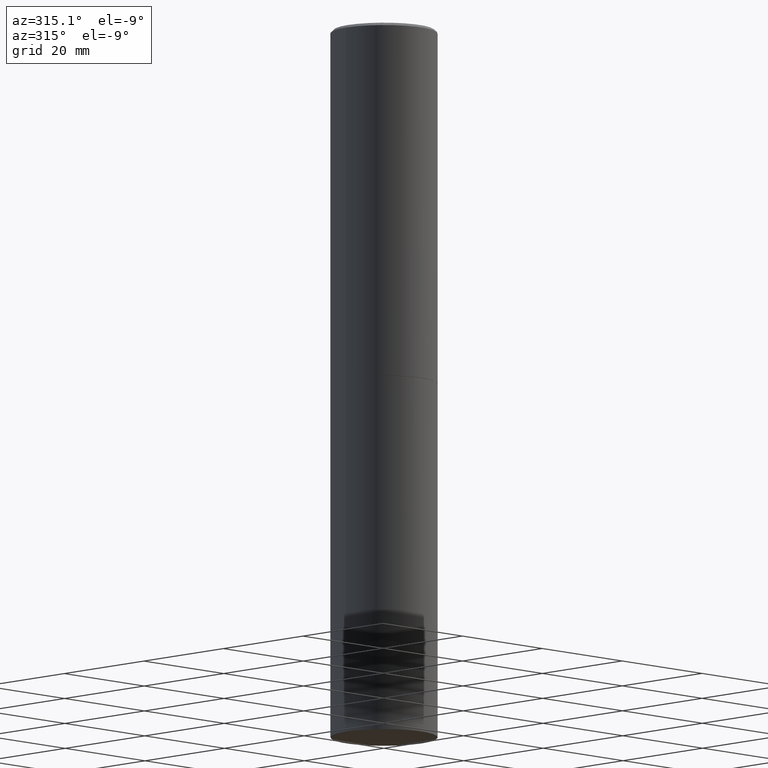
[diagram: clean part render]
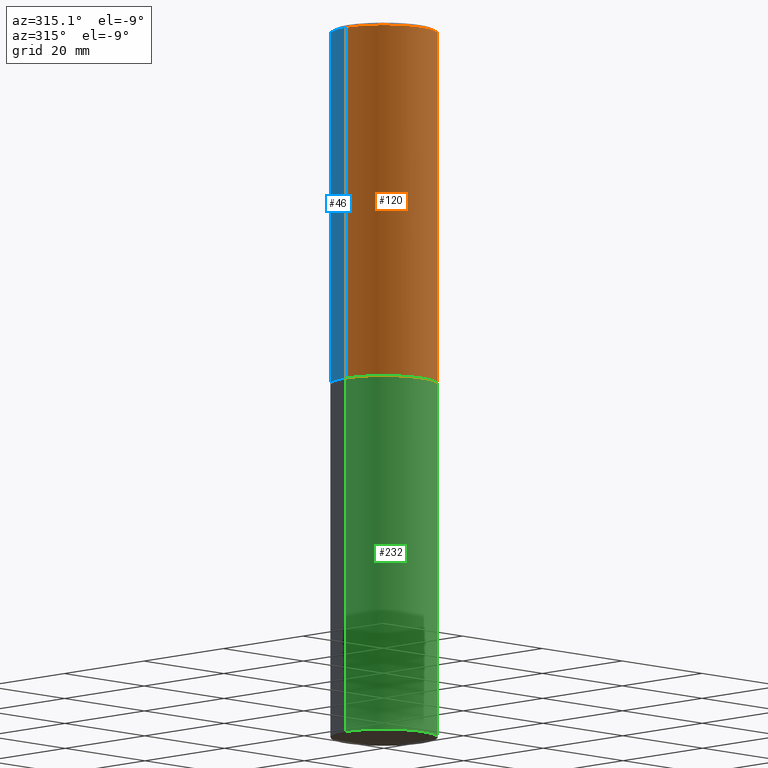
[diagram: same view with three faces highlighted in distinct colors, each labeled with its STEP entity id]
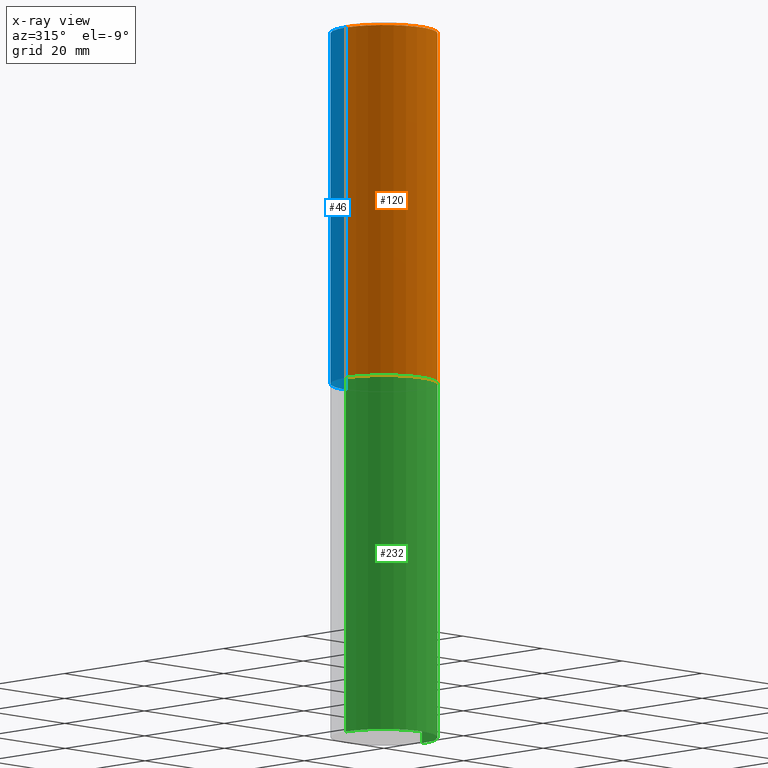
[diagram: x-ray of the same camera — body ghosted, the three highlighted faces saturated]
A machine part, auxiliary view with three faces highlighted in distinct colors.
The next image is the same camera in x-ray (body ghosted, the three faces saturated) — at least one of them is partly hidden behind the body in this view.
Their STEP definitions:

[orange] entity #120 — the highlighted cylindrical surface (partial cylindrical patch) has radius 9.525 mm, axis along (-0, 0, 1).
#3 = EDGE_LOOP ( 'NONE', ( #44, #196, #18, #119 ) ) ;
#18 = ORIENTED_EDGE ( 'NONE', *, *, #292, .T. ) ;
#21 = EDGE_CURVE ( 'NONE', #319, #22, #202, .T. ) ;
#22 = VERTEX_POINT ( 'NONE', #310 ) ;
#41 = CARTESIAN_POINT ( 'NONE',  ( 4.890937612370292426E-31, -6.982962677686317493E-17, -0.02000000000000007674 ) ) ;
#44 = ORIENTED_EDGE ( 'NONE', *, *, #21, .F. ) ;
#52 = CARTESIAN_POINT ( 'NONE',  ( 0.000000000000000000, 0.000000000000000000, 0.000000000000000000 ) ) ;
#59 = CARTESIAN_POINT ( 'NONE',  ( 0.3750000000000000555, -1.134382286990137353E-14, -2.499000000000000998 ) ) ;
#84 = DIRECTION ( 'NONE',  ( 1.000000000000000000, -6.982962677686264344E-15, 0.000000000000000000 ) ) ;
#89 = CYLINDRICAL_SURFACE ( 'NONE', #284, 0.3749999999999998890 ) ;
#94 = DIRECTION ( 'NONE',  ( 1.000000000000000000, -6.982962677686265922E-15, 0.000000000000000000 ) ) ;
#119 = ORIENTED_EDGE ( 'NONE', *, *, #174, .F. ) ;
#120 = ADVANCED_FACE ( 'NONE', ( #315 ), #89, .T. ) ;
#123 = CARTESIAN_POINT ( 'NONE',  ( 0.3749999999999998890, -2.618611004132349228E-15, 1.828566290923475362E-29 ) ) ;
#141 = VERTEX_POINT ( 'NONE', #59 ) ;
#151 = EDGE_CURVE ( 'NONE', #319, #141, #316, .T. ) ;
#174 = EDGE_CURVE ( 'NONE', #22, #247, #229, .T. ) ;
#190 = LINE ( 'NONE', #123, #244 ) ;
#191 = AXIS2_PLACEMENT_3D ( 'NONE', #41, #243, #94 ) ;
#196 = ORIENTED_EDGE ( 'NONE', *, *, #151, .T. ) ;
#197 = CARTESIAN_POINT ( 'NONE',  ( -0.3750000000000000555, -1.732985487172565737E-15, -2.499000000000000998 ) ) ;
#201 = DIRECTION ( 'NONE',  ( -2.445468806185136597E-29, 3.491481338843145583E-15, 1.000000000000000000 ) ) ;
#202 = LINE ( 'NONE', #233, #309 ) ;
#206 = DIRECTION ( 'NONE',  ( -2.445468806185136877E-29, 3.491481338843145188E-15, 1.000000000000000000 ) ) ;
#229 = CIRCLE ( 'NONE', #191, 0.3749999999999997780 ) ;
#231 = CARTESIAN_POINT ( 'NONE',  ( 6.111226546656659252E-29, -8.725211865769023513E-15, -2.499000000000000998 ) ) ;
#233 = CARTESIAN_POINT ( 'NONE',  ( -0.3749999999999998890, 2.664535259100374908E-15, -1.844600658845589038E-29 ) ) ;
#242 = CARTESIAN_POINT ( 'NONE',  ( 0.3749999999999997780, -2.642516375941186056E-15, -0.02000000000000007674 ) ) ;
#243 = DIRECTION ( 'NONE',  ( -2.445468806185136597E-29, 3.491481338843145583E-15, 1.000000000000000000 ) ) ;
#244 = VECTOR ( 'NONE', #331, 39.37007874015748143 ) ;
#246 = AXIS2_PLACEMENT_3D ( 'NONE', #231, #308, #84 ) ;
#247 = VERTEX_POINT ( 'NONE', #242 ) ;
#256 = DIRECTION ( 'NONE',  ( 1.000000000000000000, -6.982962677686266711E-15, 4.876176775795935793E-29 ) ) ;
#284 = AXIS2_PLACEMENT_3D ( 'NONE', #52, #201, #256 ) ;
#292 = EDGE_CURVE ( 'NONE', #141, #247, #190, .T. ) ;
#308 = DIRECTION ( 'NONE',  ( -2.445468806185136597E-29, 3.491481338843145583E-15, 1.000000000000000000 ) ) ;
#309 = VECTOR ( 'NONE', #206, 39.37007874015748143 ) ;
#310 = CARTESIAN_POINT ( 'NONE',  ( -0.3749999999999997780, 2.548781377355484746E-15, -0.02000000000000007674 ) ) ;
#315 = FACE_OUTER_BOUND ( 'NONE', #3, .T. ) ;
#316 = CIRCLE ( 'NONE', #246, 0.3750000000000000555 ) ;
#319 = VERTEX_POINT ( 'NONE', #197 ) ;
#331 = DIRECTION ( 'NONE',  ( -2.445468806185136877E-29, 3.491481338843145188E-15, 1.000000000000000000 ) ) ;

[blue] entity #46 — the highlighted cylindrical surface (partial cylindrical patch) has radius 9.525 mm, axis along (-0, 0, 1).
#21 = EDGE_CURVE ( 'NONE', #319, #22, #202, .T. ) ;
#22 = VERTEX_POINT ( 'NONE', #310 ) ;
#24 = EDGE_LOOP ( 'NONE', ( #53, #252, #329, #172 ) ) ;
#32 = AXIS2_PLACEMENT_3D ( 'NONE', #312, #87, #288 ) ;
#37 = CARTESIAN_POINT ( 'NONE',  ( 4.890937612370292426E-31, -6.982962677686317493E-17, -0.02000000000000007674 ) ) ;
#40 = DIRECTION ( 'NONE',  ( 1.000000000000000000, -6.982962677686264344E-15, 0.000000000000000000 ) ) ;
#46 = ADVANCED_FACE ( 'NONE', ( #286 ), #62, .T. ) ;
#53 = ORIENTED_EDGE ( 'NONE', *, *, #226, .T. ) ;
#54 = AXIS2_PLACEMENT_3D ( 'NONE', #37, #161, #111 ) ;
#59 = CARTESIAN_POINT ( 'NONE',  ( 0.3750000000000000555, -1.134382286990137353E-14, -2.499000000000000998 ) ) ;
#62 = CYLINDRICAL_SURFACE ( 'NONE', #32, 0.3749999999999998890 ) ;
#87 = DIRECTION ( 'NONE',  ( -2.445468806185136597E-29, 3.491481338843145583E-15, 1.000000000000000000 ) ) ;
#111 = DIRECTION ( 'NONE',  ( 1.000000000000000000, -6.982962677686265922E-15, 0.000000000000000000 ) ) ;
#123 = CARTESIAN_POINT ( 'NONE',  ( 0.3749999999999998890, -2.618611004132349228E-15, 1.828566290923475362E-29 ) ) ;
#141 = VERTEX_POINT ( 'NONE', #59 ) ;
#161 = DIRECTION ( 'NONE',  ( -2.445468806185136597E-29, 3.491481338843145583E-15, 1.000000000000000000 ) ) ;
#172 = ORIENTED_EDGE ( 'NONE', *, *, #292, .F. ) ;
#189 = DIRECTION ( 'NONE',  ( -2.445468806185136597E-29, 3.491481338843145583E-15, 1.000000000000000000 ) ) ;
#190 = LINE ( 'NONE', #123, #244 ) ;
#197 = CARTESIAN_POINT ( 'NONE',  ( -0.3750000000000000555, -1.732985487172565737E-15, -2.499000000000000998 ) ) ;
#202 = LINE ( 'NONE', #233, #309 ) ;
#206 = DIRECTION ( 'NONE',  ( -2.445468806185136877E-29, 3.491481338843145188E-15, 1.000000000000000000 ) ) ;
#210 = CIRCLE ( 'NONE', #260, 0.3750000000000000555 ) ;
#214 = CARTESIAN_POINT ( 'NONE',  ( 6.111226546656659252E-29, -8.725211865769023513E-15, -2.499000000000000998 ) ) ;
#226 = EDGE_CURVE ( 'NONE', #141, #319, #210, .T. ) ;
#233 = CARTESIAN_POINT ( 'NONE',  ( -0.3749999999999998890, 2.664535259100374908E-15, -1.844600658845589038E-29 ) ) ;
#236 = EDGE_CURVE ( 'NONE', #247, #22, #298, .T. ) ;
#242 = CARTESIAN_POINT ( 'NONE',  ( 0.3749999999999997780, -2.642516375941186056E-15, -0.02000000000000007674 ) ) ;
#244 = VECTOR ( 'NONE', #331, 39.37007874015748143 ) ;
#247 = VERTEX_POINT ( 'NONE', #242 ) ;
#252 = ORIENTED_EDGE ( 'NONE', *, *, #21, .T. ) ;
#260 = AXIS2_PLACEMENT_3D ( 'NONE', #214, #189, #40 ) ;
#286 = FACE_OUTER_BOUND ( 'NONE', #24, .T. ) ;
#288 = DIRECTION ( 'NONE',  ( 1.000000000000000000, -6.982962677686266711E-15, 4.876176775795935793E-29 ) ) ;
#292 = EDGE_CURVE ( 'NONE', #141, #247, #190, .T. ) ;
#298 = CIRCLE ( 'NONE', #54, 0.3749999999999997780 ) ;
#309 = VECTOR ( 'NONE', #206, 39.37007874015748143 ) ;
#310 = CARTESIAN_POINT ( 'NONE',  ( -0.3749999999999997780, 2.548781377355484746E-15, -0.02000000000000007674 ) ) ;
#312 = CARTESIAN_POINT ( 'NONE',  ( 0.000000000000000000, 0.000000000000000000, 0.000000000000000000 ) ) ;
#319 = VERTEX_POINT ( 'NONE', #197 ) ;
#329 = ORIENTED_EDGE ( 'NONE', *, *, #236, .F. ) ;
#331 = DIRECTION ( 'NONE',  ( -2.445468806185136877E-29, 3.491481338843145188E-15, 1.000000000000000000 ) ) ;

[green] entity #232 — the highlighted cylindrical surface (partial cylindrical patch) has radius 9.525 mm, axis along (-0, 0, 1).
#11 = LINE ( 'NONE', #322, #63 ) ;
#17 = DIRECTION ( 'NONE',  ( -2.445468806185136597E-29, 3.491481338843145583E-15, 1.000000000000000000 ) ) ;
#20 = ORIENTED_EDGE ( 'NONE', *, *, #290, .T. ) ;
#23 = DIRECTION ( 'NONE',  ( -2.445468806185136877E-29, 3.491481338843145188E-15, 1.000000000000000000 ) ) ;
#30 = EDGE_CURVE ( 'NONE', #328, #100, #192, .T. ) ;
#49 = CARTESIAN_POINT ( 'NONE',  ( 1.222734403092568523E-28, -1.745740669421572989E-14, -5.000000000000000000 ) ) ;
#51 = DIRECTION ( 'NONE',  ( 1.000000000000000000, -6.982962677686266711E-15, 0.000000000000000000 ) ) ;
#56 = AXIS2_PLACEMENT_3D ( 'NONE', #71, #17, #327 ) ;
#63 = VECTOR ( 'NONE', #64, 39.37007874015748143 ) ;
#64 = DIRECTION ( 'NONE',  ( -2.445468806185136877E-29, 3.491481338843145188E-15, 1.000000000000000000 ) ) ;
#65 = CYLINDRICAL_SURFACE ( 'NONE', #275, 0.3750000000000000555 ) ;
#66 = CARTESIAN_POINT ( 'NONE',  ( 0.000000000000000000, 0.000000000000000000, 0.000000000000000000 ) ) ;
#69 = FACE_OUTER_BOUND ( 'NONE', #78, .T. ) ;
#71 = CARTESIAN_POINT ( 'NONE',  ( 6.113672015462842613E-29, -8.728703347107864943E-15, -2.500000000000000000 ) ) ;
#78 = EDGE_LOOP ( 'NONE', ( #121, #136, #20, #168 ) ) ;
#100 = VERTEX_POINT ( 'NONE', #203 ) ;
#102 = CARTESIAN_POINT ( 'NONE',  ( -0.3750000000000000555, -1.042851976156142014E-14, -2.500000000000000000 ) ) ;
#103 = CIRCLE ( 'NONE', #139, 0.3750000000000000555 ) ;
#121 = ORIENTED_EDGE ( 'NONE', *, *, #269, .F. ) ;
#135 = DIRECTION ( 'NONE',  ( 1.000000000000000000, -6.982962677686265922E-15, 4.876176775795935793E-29 ) ) ;
#136 = ORIENTED_EDGE ( 'NONE', *, *, #313, .T. ) ;
#139 = AXIS2_PLACEMENT_3D ( 'NONE', #49, #296, #51 ) ;
#142 = CARTESIAN_POINT ( 'NONE',  ( 0.3750000000000000555, -2.007601769834807990E-14, -5.000000000000000000 ) ) ;
#164 = DIRECTION ( 'NONE',  ( -2.445468806185136597E-29, 3.491481338843145583E-15, 1.000000000000000000 ) ) ;
#168 = ORIENTED_EDGE ( 'NONE', *, *, #30, .F. ) ;
#192 = CIRCLE ( 'NONE', #56, 0.3750000000000000555 ) ;
#203 = CARTESIAN_POINT ( 'NONE',  ( 0.3750000000000000555, -1.134731435124021338E-14, -2.500000000000000000 ) ) ;
#222 = VECTOR ( 'NONE', #23, 39.37007874015748143 ) ;
#224 = CARTESIAN_POINT ( 'NONE',  ( -0.3750000000000000555, -1.042851976156142014E-14, -5.000000000000000000 ) ) ;
#232 = ADVANCED_FACE ( 'NONE', ( #69 ), #65, .T. ) ;
#237 = LINE ( 'NONE', #335, #222 ) ;
#269 = EDGE_CURVE ( 'NONE', #323, #328, #11, .T. ) ;
#272 = VERTEX_POINT ( 'NONE', #142 ) ;
#275 = AXIS2_PLACEMENT_3D ( 'NONE', #66, #164, #135 ) ;
#290 = EDGE_CURVE ( 'NONE', #272, #100, #237, .T. ) ;
#296 = DIRECTION ( 'NONE',  ( -2.445468806185136597E-29, 3.491481338843145583E-15, 1.000000000000000000 ) ) ;
#313 = EDGE_CURVE ( 'NONE', #323, #272, #103, .T. ) ;
#322 = CARTESIAN_POINT ( 'NONE',  ( -0.3750000000000000555, 2.664535259100376091E-15, -1.844600658845589598E-29 ) ) ;
#323 = VERTEX_POINT ( 'NONE', #224 ) ;
#327 = DIRECTION ( 'NONE',  ( 1.000000000000000000, -6.982962677686264344E-15, 0.000000000000000000 ) ) ;
#328 = VERTEX_POINT ( 'NONE', #102 ) ;
#335 = CARTESIAN_POINT ( 'NONE',  ( 0.3750000000000000555, -2.618611004132350016E-15, 1.828566290923476203E-29 ) ) ;